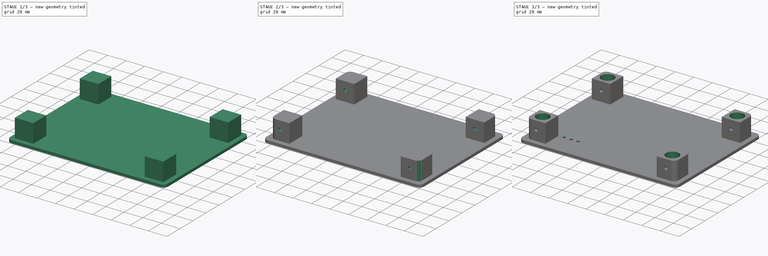
[diagram: build sequence overview — one tinted view per stage of 3, left to right]
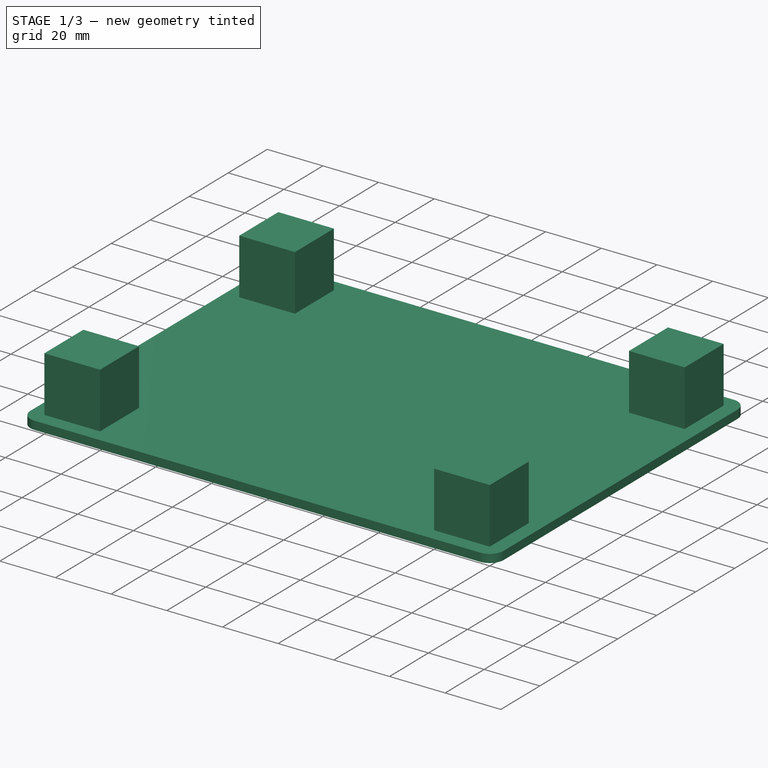
[diagram: stage 1 of 3 — iso view after this stage's code; geometry added in this stage tinted green]
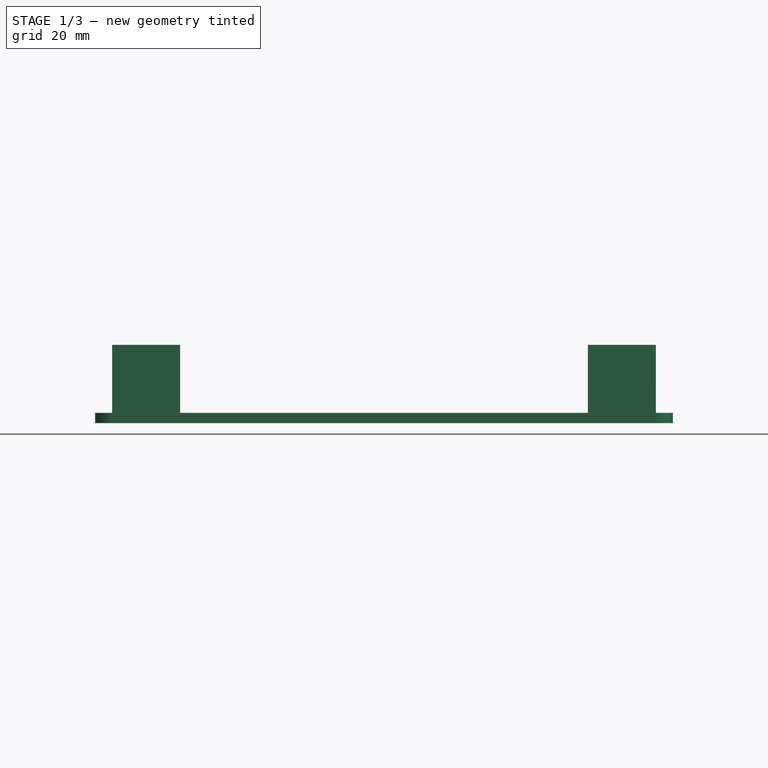
[diagram: stage 1 of 3 — front view after this stage's code; geometry added in this stage tinted green]
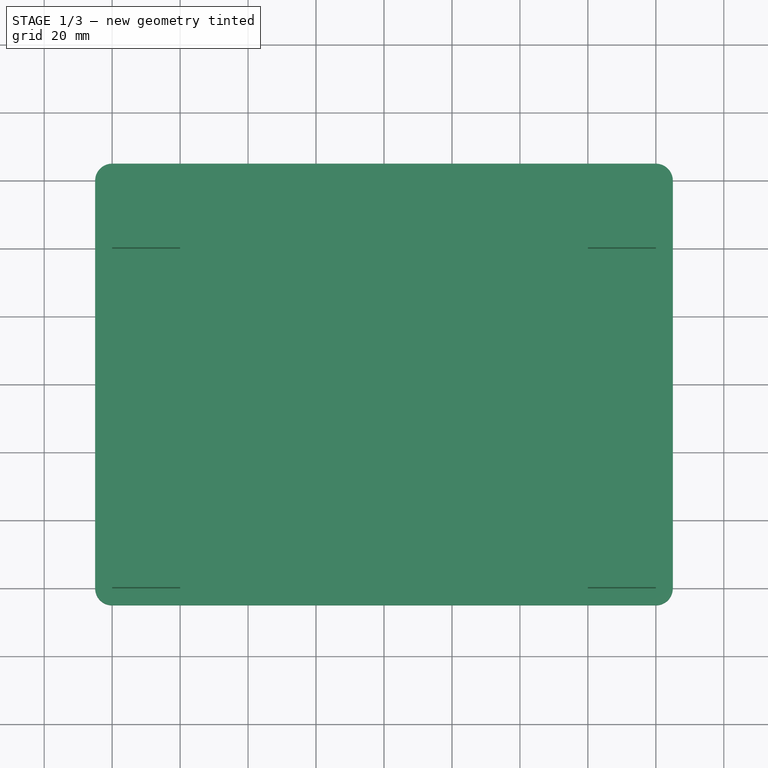
[diagram: stage 1 of 3 — top view after this stage's code; geometry added in this stage tinted green]
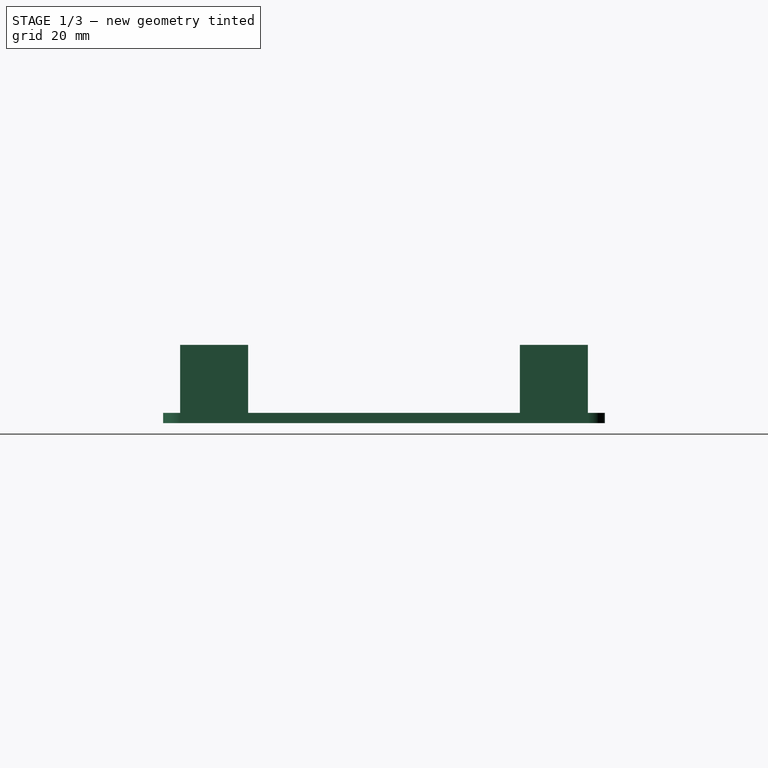
[diagram: stage 1 of 3 — right view after this stage's code; geometry added in this stage tinted green]
FCSTD DOCUMENT  (FreeCAD 0.16R5509 (Git))
Label: case_raspberryB_plate
License: All rights reserved
LicenseURL: http://en.wikipedia.org/wiki/All_rights_reserved
objects: Sketcher::SketchObject×7, PartDesign::Pocket×3, PartDesign::Pad×2, PartDesign::Fillet×1
note: 18 computed .brp shape members not serialized (recipe doc carries the construction recipe); baked Part::Feature solids carry a one-line shape summary decoded from their .brp

FEATURE [Sketcher::SketchObject] Sketch  label="SketchBoard"
  sketch-geometry (8):
    g0: LineSegment StartX=-80 StartY=65 StartZ=0 EndX=80 EndY=65 EndZ=0
    g1: LineSegment StartX=85 StartY=60 StartZ=0 EndX=85 EndY=-60 EndZ=0
    g2: LineSegment StartX=80 StartY=-65 StartZ=0 EndX=-80 EndY=-65 EndZ=0
    g3: LineSegment StartX=-85 StartY=-60 StartZ=0 EndX=-85 EndY=60 EndZ=0
    g4: ArcOfCircle CenterX=-80 CenterY=60 CenterZ=0 NormalX=0 NormalY=0 NormalZ=1 Radius=5 StartAngle=1.5708 EndAngle=3.14159
    g5: ArcOfCircle CenterX=80 CenterY=60 CenterZ=0 NormalX=0 NormalY=0 NormalZ=1 Radius=5 StartAngle=0 EndAngle=1.5708
    g6: ArcOfCircle CenterX=80 CenterY=-60 CenterZ=0 NormalX=0 NormalY=0 NormalZ=1 Radius=5 StartAngle=4.71239 EndAngle=6.28319
    g7: ArcOfCircle CenterX=-80 CenterY=-60 CenterZ=0 NormalX=0 NormalY=0 NormalZ=1 Radius=5 StartAngle=3.14159 EndAngle=4.71239
  constraints (18):
    c: Horizontal(g0)
    c: Horizontal(g2)
    c: Tangent(g3,g4) = 1.5708
    c: Tangent(g0,g4) = 1.5708
    c: Tangent(g0,g5) = 1.5708
    c: Tangent(g1,g5) = 1.5708
    c: Tangent(g1,g6) = 1.5708
    c: Tangent(g2,g6) = 1.5708
    c: Tangent(g3,g7) = 1.5708
    c: Tangent(g2,g7) = 1.5708
    c: Equal(g7,g4)
    c: Equal(g4,g5)
    c: Equal(g5,g6)
    c: Symmetric(g3,g1,g-2)
    c: Symmetric(g0,g2,g-1)
    c: DistanceX(g3,g1) = 170
    c: DistanceY(g0,g2) = -130
    c: Radius(g4) = 5
FEATURE [PartDesign::Pad] Pad  label="Board"
  Length = 3
  Length2 = 100
  Sketch = -> Sketch
  Type = 0
FEATURE [Sketcher::SketchObject] Sketch001  label="SketchPositions"
  ExternalGeometry = -> [Pad]
  Placement = pos=(0,0,3) rot=(0,0,1;0rad)
  Support = -> Pad [Face10]
  sketch-geometry (68):
    g0: LineSegment StartX=-76.7382 StartY=31.3423 StartZ=0 EndX=-38.7382 EndY=31.3423 EndZ=0
    g1: LineSegment StartX=-36.7382 StartY=29.3423 StartZ=0 EndX=-36.7382 EndY=-28.6577 EndZ=0
    g2: LineSegment StartX=-38.7382 StartY=-30.6577 StartZ=0 EndX=-76.7382 EndY=-30.6577 EndZ=0
    g3: LineSegment StartX=-78.7382 StartY=-28.6577 StartZ=0 EndX=-78.7382 EndY=29.3423 EndZ=0
    g4: ArcOfCircle CenterX=-76.7382 CenterY=29.3423 CenterZ=0 NormalX=0 NormalY=0 NormalZ=1 Radius=2 StartAngle=1.5708 EndAngle=3.14159
    g5: ArcOfCircle CenterX=-38.7382 CenterY=29.3423 CenterZ=0 NormalX=0 NormalY=0 NormalZ=1 Radius=2 StartAngle=0 EndAngle=1.5708
    g6: ArcOfCircle CenterX=-38.7382 CenterY=-28.6577 CenterZ=0 NormalX=0 NormalY=0 NormalZ=1 Radius=2 StartAngle=4.71239 EndAngle=6.28319
    g7: ArcOfCircle CenterX=-76.7382 CenterY=-28.6577 CenterZ=0 NormalX=0 NormalY=0 NormalZ=1 Radius=2 StartAngle=3.14159 EndAngle=4.71239
    g8: LineSegment StartX=-77.7382 StartY=32.3423 StartZ=0 EndX=-37.7382 EndY=32.3423 EndZ=0
    g9: LineSegment StartX=-35.7382 StartY=30.3423 StartZ=0 EndX=-35.7382 EndY=-29.6577 EndZ=0
    g10: LineSegment StartX=-37.7382 StartY=-31.6577 StartZ=0 EndX=-77.7382 EndY=-31.6577 EndZ=0
    g11: LineSegment StartX=-79.7382 StartY=-29.6577 StartZ=0 EndX=-79.7382 EndY=30.3423 EndZ=0
    g12: ArcOfCircle CenterX=-77.7382 CenterY=30.3423 CenterZ=0 NormalX=0 NormalY=0 NormalZ=1 Radius=2 StartAngle=1.5708 EndAngle=3.14159
    g13: ArcOfCircle CenterX=-37.7382 CenterY=30.3423 CenterZ=0 NormalX=0 NormalY=0 NormalZ=1 Radius=2 StartAngle=0 EndAngle=1.5708
    g14: ArcOfCircle CenterX=-37.7382 CenterY=-29.6577 CenterZ=0 NormalX=0 NormalY=0 NormalZ=1 Radius=2 StartAngle=4.71239 EndAngle=6.28319
    g15: ArcOfCircle CenterX=-77.7382 CenterY=-29.6577 CenterZ=0 NormalX=0 NormalY=0 NormalZ=1 Radius=2 StartAngle=3.14159 EndAngle=4.71239
    g16: LineSegment StartX=40.0389 StartY=19.1629 StartZ=0 EndX=76.0389 EndY=19.1629 EndZ=0
    g17: LineSegment StartX=78.0389 StartY=17.1629 StartZ=0 EndX=78.0389 EndY=-29.8371 EndZ=0
    g18: LineSegment StartX=76.0389 StartY=-31.8371 StartZ=0 EndX=40.0389 EndY=-31.8371 EndZ=0
    g19: LineSegment StartX=38.0389 StartY=-29.8371 StartZ=0 EndX=38.0389 EndY=17.1629 EndZ=0
    g20: ArcOfCircle CenterX=40.0389 CenterY=17.1629 CenterZ=0 NormalX=0 NormalY=0 NormalZ=1 Radius=2 StartAngle=1.5708 EndAngle=3.14159
    g21: ArcOfCircle CenterX=76.0389 CenterY=17.1629 CenterZ=0 NormalX=0 NormalY=0 NormalZ=1 Radius=2 StartAngle=0 EndAngle=1.5708
    g22: ArcOfCircle CenterX=76.0389 CenterY=-29.8371 CenterZ=0 NormalX=0 NormalY=0 NormalZ=1 Radius=2 StartAngle=4.71239 EndAngle=6.28319
    g23: ArcOfCircle CenterX=40.0389 CenterY=-29.8371 CenterZ=0 NormalX=0 NormalY=0 NormalZ=1 Radius=2 StartAngle=3.14159 EndAngle=4.71239
    g24: LineSegment StartX=39.0389 StartY=20.1629 StartZ=0 EndX=77.0389 EndY=20.1629 EndZ=0
    g25: LineSegment StartX=79.0389 StartY=18.1629 StartZ=0 EndX=79.0389 EndY=-30.8371 EndZ=0
    g26: LineSegment StartX=77.0389 StartY=-32.8371 StartZ=0 EndX=39.0389 EndY=-32.8371 EndZ=0
    g27: LineSegment StartX=37.0389 StartY=-30.8371 StartZ=0 EndX=37.0389 EndY=18.1629 EndZ=0
    g28: ArcOfCircle CenterX=39.0389 CenterY=18.1629 CenterZ=0 NormalX=0 NormalY=0 NormalZ=1 Radius=2 StartAngle=1.5708 EndAngle=3.14159
    g29: ArcOfCircle CenterX=77.0389 CenterY=18.1629 CenterZ=0 NormalX=0 NormalY=0 NormalZ=1 Radius=2 StartAngle=0 EndAngle=1.5708
    g30: ArcOfCircle CenterX=77.0389 CenterY=-30.8371 CenterZ=0 NormalX=0 NormalY=0 NormalZ=1 Radius=2 StartAngle=4.71239 EndAngle=6.28319
    g31: ArcOfCircle CenterX=39.0389 CenterY=-30.8371 CenterZ=0 NormalX=0 NormalY=0 NormalZ=1 Radius=2 StartAngle=3.14159 EndAngle=4.71239
    g32: LineSegment StartX=-30.4598 StartY=27.7306 StartZ=0 EndX=22.5402 EndY=27.7306 EndZ=0
    g33: LineSegment StartX=24.5402 StartY=25.7306 StartZ=0 EndX=24.5402 EndY=-57.2694 EndZ=0
    g34: LineSegment StartX=22.5402 StartY=-59.2694 StartZ=0 EndX=-30.4598 EndY=-59.2694 EndZ=0
    g35: LineSegment StartX=-32.4598 StartY=-57.2694 StartZ=0 EndX=-32.4598 EndY=25.7306 EndZ=0
    g36: ArcOfCircle CenterX=-30.4598 CenterY=25.7306 CenterZ=0 NormalX=0 NormalY=0 NormalZ=1 Radius=2 StartAngle=1.5708 EndAngle=3.14159
    g37: ArcOfCircle CenterX=22.5402 CenterY=25.7306 CenterZ=0 NormalX=0 NormalY=0 NormalZ=1 Radius=2 StartAngle=0 EndAngle=1.5708
    g38: ArcOfCircle CenterX=22.5402 CenterY=-57.2694 CenterZ=0 NormalX=0 NormalY=0 NormalZ=1 Radius=2 StartAngle=4.71239 EndAngle=6.28319
    g39: ArcOfCircle CenterX=-30.4598 CenterY=-57.2694 CenterZ=0 NormalX=0 NormalY=0 NormalZ=1 Radius=2 StartAngle=3.14159 EndAngle=4.71239
    g40: LineSegment StartX=-31.4598 StartY=28.7306 StartZ=0 EndX=24.3138 EndY=28.7306 EndZ=0
    g41: LineSegment StartX=23.5402 StartY=-60.2694 StartZ=0 EndX=-31.4598 EndY=-60.2694 EndZ=0
    g42: LineSegment StartX=-33.4598 StartY=-58.2694 StartZ=0 EndX=-33.4598 EndY=26.7306 EndZ=0
    g43: ArcOfCircle CenterX=-31.4598 CenterY=26.7306 CenterZ=0 NormalX=0 NormalY=0 NormalZ=1 Radius=2 StartAngle=1.5708 EndAngle=3.14159
    g44: ArcOfCircle CenterX=24.3138 CenterY=26.7306 CenterZ=0 NormalX=0 NormalY=0 NormalZ=1 Radius=2 StartAngle=0.910664 EndAngle=1.5708
    g45: ArcOfCircle CenterX=23.5402 CenterY=-58.2694 CenterZ=0 NormalX=0 NormalY=0 NormalZ=1 Radius=2 StartAngle=4.71239 EndAngle=6.28319
    g46: ArcOfCircle CenterX=-31.4598 CenterY=-58.2694 CenterZ=0 NormalX=0 NormalY=0 NormalZ=1 Radius=2 StartAngle=3.14159 EndAngle=4.71239
    g47: LineSegment StartX=25.5402 StartY=-58.2694 StartZ=0 EndX=25.5402 EndY=-19.2694 EndZ=0
    g48: LineSegment StartX=25.5402 StartY=-19.2694 StartZ=0 EndX=31.5402 EndY=-19.2694 EndZ=0
    g49: LineSegment StartX=31.5402 StartY=-19.2694 StartZ=0 EndX=31.5402 EndY=-12.2694 EndZ=0
    g50: LineSegment StartX=31.5402 StartY=-12.2694 StartZ=0 EndX=25.5402 EndY=-12.2694 EndZ=0
    g51: LineSegment StartX=25.5402 StartY=-12.2694 StartZ=0 EndX=25.5402 EndY=28.3104 EndZ=0
    g52: LineSegment StartX=-7.3398 StartY=57.1476 StartZ=0 EndX=50.6602 EndY=57.1476 EndZ=0
    g53: LineSegment StartX=52.6602 StartY=55.1476 StartZ=0 EndX=52.6602 EndY=36.1476 EndZ=0
    g54: LineSegment StartX=50.6602 StartY=34.1476 StartZ=0 EndX=-7.3398 EndY=34.1476 EndZ=0
    g55: LineSegment StartX=-9.3398 StartY=36.1476 StartZ=0 EndX=-9.3398 EndY=55.1476 EndZ=0
    g56: ArcOfCircle CenterX=-7.3398 CenterY=55.1476 CenterZ=0 NormalX=0 NormalY=0 NormalZ=1 Radius=2 StartAngle=1.5708 EndAngle=3.14159
    g57: ArcOfCircle CenterX=50.6602 CenterY=55.1476 CenterZ=0 NormalX=0 NormalY=0 NormalZ=1 Radius=2 StartAngle=0 EndAngle=1.5708
    g58: ArcOfCircle CenterX=50.6602 CenterY=36.1476 CenterZ=0 NormalX=0 NormalY=0 NormalZ=1 Radius=2 StartAngle=4.71239 EndAngle=6.28319
    g59: ArcOfCircle CenterX=-7.3398 CenterY=36.1476 CenterZ=0 NormalX=0 NormalY=0 NormalZ=1 Radius=2 StartAngle=3.14159 EndAngle=4.71239
    g60: LineSegment StartX=-8.3398 StartY=58.1476 StartZ=0 EndX=51.6602 EndY=58.1476 EndZ=0
    g61: LineSegment StartX=53.6602 StartY=56.1476 StartZ=0 EndX=53.6602 EndY=35.1476 EndZ=0
    g62: LineSegment StartX=51.6602 StartY=33.1476 StartZ=0 EndX=-8.3398 EndY=33.1476 EndZ=0
    g63: LineSegment StartX=-10.3398 StartY=35.1476 StartZ=0 EndX=-10.3398 EndY=56.1476 EndZ=0
    g64: ArcOfCircle CenterX=-8.3398 CenterY=56.1476 CenterZ=0 NormalX=0 NormalY=0 NormalZ=1 Radius=2 StartAngle=1.5708 EndAngle=3.14159
    g65: ArcOfCircle CenterX=51.6602 CenterY=56.1476 CenterZ=0 NormalX=0 NormalY=0 NormalZ=1 Radius=2 StartAngle=0 EndAngle=1.5708
    g66: ArcOfCircle CenterX=51.6602 CenterY=35.1476 CenterZ=0 NormalX=0 NormalY=0 NormalZ=1 Radius=2 StartAngle=4.71239 EndAngle=6.28319
    g67: ArcOfCircle CenterX=-8.3398 CenterY=35.1476 CenterZ=0 NormalX=0 NormalY=0 NormalZ=1 Radius=2 StartAngle=3.14159 EndAngle=4.71239
  constraints (164):
    c: Tangent(g0,g4) = 1.5708
    c: Tangent(g3,g4) = 1.5708
    c: Tangent(g0,g5) = 1.5708
    c: Tangent(g1,g5) = 1.5708
    c: Tangent(g2,g6) = 1.5708
    c: Tangent(g1,g6) = 1.5708
    c: Tangent(g2,g7) = 1.5708
    c: Tangent(g3,g7) = 1.5708
    c: Horizontal(g0)
    c: Vertical(g1)
    c: Vertical(g3)
    c: Horizontal(g2)
    c: DistanceY(g2,g0) = 62
    c: Equal(g4,g7)
    c: Equal(g7,g6)
    c: Equal(g6,g5)
    c: Radius(g5) = 2
    c: Tangent(g8,g12) = 1.5708
    c: Tangent(g11,g12) = 1.5708
    c: Tangent(g8,g13) = 1.5708
    c: Tangent(g9,g13) = 1.5708
    c: Tangent(g10,g14) = 1.5708
    c: Tangent(g9,g14) = 1.5708
    c: Tangent(g10,g15) = 1.5708
    c: Tangent(g11,g15) = 1.5708
    c: Horizontal(g8)
    c: Vertical(g9)
    c: Vertical(g11)
    c: Horizontal(g10)
    c: DistanceY(g10,g8) = 64
    c: Equal(g12,g15)
    c: Equal(g15,g14)
    c: Equal(g14,g13)
    c: Equal(g5,g13) = 2
    c: DistanceX(g11,g9) = 44
    c: DistanceX(g3,g1) = 42
    c: DistanceY(g8,g0) = -1
    c: DistanceX(g11,g3) = 1
    c: Tangent(g16,g20) = 1.5708
    c: Tangent(g19,g20) = 1.5708
    c: Tangent(g16,g21) = 1.5708
    c: Tangent(g17,g21) = 1.5708
    c: Tangent(g18,g22) = 1.5708
    c: Tangent(g17,g22) = 1.5708
    c: Tangent(g18,g23) = 1.5708
    c: Tangent(g19,g23) = 1.5708
    c: Horizontal(g16)
    c: Vertical(g17)
    c: Vertical(g19)
    c: Horizontal(g18)
    c: DistanceY(g18,g16) = 51
    c: Equal(g20,g23)
    c: Equal(g23,g22)
    c: Equal(g22,g21)
    c: Equal(g5,g21) = 2
    c: Tangent(g24,g28) = 1.5708
    c: Tangent(g27,g28) = 1.5708
    c: Tangent(g24,g29) = 1.5708
    c: Tangent(g25,g29) = 1.5708
    c: Tangent(g26,g30) = 1.5708
    c: Tangent(g25,g30) = 1.5708
    c: Tangent(g26,g31) = 1.5708
    c: Tangent(g27,g31) = 1.5708
    c: Horizontal(g24)
    c: Vertical(g25)
    c: Vertical(g27)
    c: Horizontal(g26)
    c: DistanceY(g26,g24) = 53
    c: Equal(g28,g31)
    c: Equal(g31,g30)
    c: Equal(g30,g29)
    c: Equal(g21,g29) = 2
    c: DistanceX(g27,g25) = 42
    c: DistanceX(g19,g17) = 40
    c: DistanceY(g24,g16) = -1
    c: DistanceX(g27,g19) = 1
    c: Tangent(g32,g36) = 1.5708
    c: Tangent(g35,g36) = 1.5708
    c: Tangent(g32,g37) = 1.5708
    c: Tangent(g33,g37) = 1.5708
    c: Tangent(g34,g38) = 1.5708
    c: Tangent(g33,g38) = 1.5708
    c: Tangent(g34,g39) = 1.5708
    c: Tangent(g35,g39) = 1.5708
    c: Horizontal(g32)
    c: Vertical(g33)
    c: Vertical(g35)
    c: Horizontal(g34)
    c: DistanceY(g34,g32) = 87
    c: Equal(g36,g39)
    c: Equal(g39,g38)
    c: Equal(g38,g37)
    c: Tangent(g40,g43) = 1.5708
    c: Tangent(g42,g43) = 1.5708
    c: Tangent(g40,g44) = 1.5708
    c: Tangent(g41,g45) = 1.5708
    c: Tangent(g41,g46) = 1.5708
    c: Tangent(g42,g46) = 1.5708
    c: Horizontal(g40)
    c: Vertical(g42)
    c: Horizontal(g41)
    c: DistanceY(g41,g40) = 89
    c: Equal(g43,g46)
    c: Equal(g46,g45)
    c: Equal(g45,g44)
    c: Equal(g37,g44) = 2
    c: DistanceX(g35,g33) = 57
    c: DistanceY(g40,g32) = -1
    c: DistanceX(g42,g35) = 1
    c: Radius(g43) = 2
    c: Tangent(g45,g47) = -1.5708
    c: Coincident(g47,g48)
    c: Horizontal(g48)
    c: Coincident(g48,g49)
    c: Vertical(g49)
    c: Coincident(g49,g50)
    c: Horizontal(g50)
    c: Coincident(g50,g51)
    c: Coincident(g51,g44)
    c: Vertical(g51)
    c: Distance(g50) = 6
    c: Equal(g50,g48)
    c: DistanceX(g33,g44) = 1
    c: Distance(g49) = 7
    c: Vertical(g47)
    c: DistanceY(g32,g50) = -40
    c: Tangent(g52,g56) = 1.5708
    c: Tangent(g55,g56) = 1.5708
    c: Tangent(g52,g57) = 1.5708
    c: Tangent(g53,g57) = 1.5708
    c: Tangent(g54,g58) = 1.5708
    c: Tangent(g53,g58) = 1.5708
    c: Tangent(g54,g59) = 1.5708
    c: Tangent(g55,g59) = 1.5708
    c: Horizontal(g52)
    c: Vertical(g53)
    c: Vertical(g55)
    c: Horizontal(g54)
    c: DistanceY(g54,g52) = 23
    c: Equal(g56,g59)
    c: Equal(g59,g58)
    c: Equal(g58,g57)
    c: Tangent(g60,g64) = 1.5708
    c: Tangent(g63,g64) = 1.5708
    c: Tangent(g60,g65) = 1.5708
    c: Tangent(g61,g65) = 1.5708
    c: Tangent(g62,g66) = 1.5708
    c: Tangent(g61,g66) = 1.5708
    c: Tangent(g62,g67) = 1.5708
    c: Tangent(g63,g67) = 1.5708
    c: Horizontal(g60)
    c: Vertical(g61)
    c: Vertical(g63)
    c: Horizontal(g62)
    c: DistanceY(g62,g60) = 25
    c: Equal(g64,g67)
    c: Equal(g67,g66)
    c: Equal(g66,g65)
    c: Equal(g57,g65) = 2
    c: DistanceX(g63,g61) = 64
    c: DistanceX(g55,g53) = 62
    c: DistanceY(g60,g52) = -1
    c: DistanceX(g63,g55) = 1
    c: Radius(g65) = 2
FEATURE [Sketcher::SketchObject] Sketch002  label="SketchMountingBolts"
  Placement = pos=(0,0,3) rot=(0,0,1;0rad)
  Support = -> Pad [Face10]
  sketch-geometry (20):
    g0: LineSegment [constr] StartX=-80 StartY=60 StartZ=0 EndX=80 EndY=60 EndZ=0
    g1: LineSegment [constr] StartX=80 StartY=60 StartZ=0 EndX=80 EndY=-60 EndZ=0
    g2: LineSegment [constr] StartX=80 StartY=-60 StartZ=0 EndX=-80 EndY=-60 EndZ=0
    g3: LineSegment [constr] StartX=-80 StartY=-60 StartZ=0 EndX=-80 EndY=60 EndZ=0
    g4: LineSegment StartX=-80 StartY=60 StartZ=0 EndX=-60 EndY=60 EndZ=0
    g5: LineSegment StartX=-60 StartY=60 StartZ=0 EndX=-60 EndY=40 EndZ=0
    g6: LineSegment StartX=-60 StartY=40 StartZ=0 EndX=-80 EndY=40 EndZ=0
    g7: LineSegment StartX=-80 StartY=40 StartZ=0 EndX=-80 EndY=60 EndZ=0
    g8: LineSegment StartX=80 StartY=60 StartZ=0 EndX=60 EndY=60 EndZ=0
    g9: LineSegment StartX=60 StartY=60 StartZ=0 EndX=60 EndY=40 EndZ=0
    g10: LineSegment StartX=60 StartY=40 StartZ=0 EndX=80 EndY=40 EndZ=0
    g11: LineSegment StartX=80 StartY=40 StartZ=0 EndX=80 EndY=60 EndZ=0
    g12: LineSegment StartX=80 StartY=-60 StartZ=0 EndX=60 EndY=-60 EndZ=0
    g13: LineSegment StartX=60 StartY=-60 StartZ=0 EndX=60 EndY=-40 EndZ=0
    g14: LineSegment StartX=60 StartY=-40 StartZ=0 EndX=80 EndY=-40 EndZ=0
    g15: LineSegment StartX=80 StartY=-40 StartZ=0 EndX=80 EndY=-60 EndZ=0
    g16: LineSegment StartX=-80 StartY=-60 StartZ=0 EndX=-60 EndY=-60 EndZ=0
    g17: LineSegment StartX=-60 StartY=-60 StartZ=0 EndX=-60 EndY=-40 EndZ=0
    g18: LineSegment StartX=-60 StartY=-40 StartZ=0 EndX=-80 EndY=-40 EndZ=0
    g19: LineSegment StartX=-80 StartY=-40 StartZ=0 EndX=-80 EndY=-60 EndZ=0
  constraints (56):
    c: Coincident(g0,g1)
    c: Coincident(g1,g2)
    c: Coincident(g2,g3)
    c: Coincident(g3,g0)
    c: Horizontal(g0)
    c: Horizontal(g2)
    c: Vertical(g1)
    c: Vertical(g3)
    c: Symmetric(g1,g0,g-1)
    c: Symmetric(g0,g0,g-2)
    c: DistanceX(g0,g0) = -160
    c: DistanceY(g1,g0) = 120
    c: Coincident(g4,g5)
    c: Coincident(g5,g6)
    c: Coincident(g6,g7)
    c: Coincident(g7,g4)
    c: Horizontal(g4)
    c: Horizontal(g6)
    c: Vertical(g5)
    c: Vertical(g7)
    c: Coincident(g4,g0)
    c: Coincident(g8,g9)
    c: Coincident(g9,g10)
    c: Coincident(g10,g11)
    c: Coincident(g11,g8)
    c: Horizontal(g8)
    c: Horizontal(g10)
    c: Vertical(g9)
    c: Vertical(g11)
    c: Coincident(g8,g0)
    c: Coincident(g12,g13)
    c: Coincident(g13,g14)
    c: Coincident(g14,g15)
    c: Coincident(g15,g12)
    c: Horizontal(g12)
    c: Horizontal(g14)
    c: Vertical(g13)
    c: Vertical(g15)
    c: Coincident(g12,g1)
    c: Coincident(g16,g17)
    c: Coincident(g17,g18)
    c: Coincident(g18,g19)
    c: Coincident(g19,g16)
    c: Horizontal(g16)
    c: Horizontal(g18)
    c: Vertical(g17)
    c: Vertical(g19)
    c: Coincident(g16,g2)
    c: Equal(g18,g17)
    c: Equal(g14,g13)
    c: Equal(g10,g9)
    c: Equal(g5,g6)
    c: Equal(g5,g9)
    c: Equal(g9,g13)
    c: Equal(g13,g17)
    c: Distance(g5) = 20
FEATURE [PartDesign::Pad] Pad001  label="MountingBolts"
  Length = 20
  Length2 = 100
  Sketch = -> Sketch002
  Type = 0
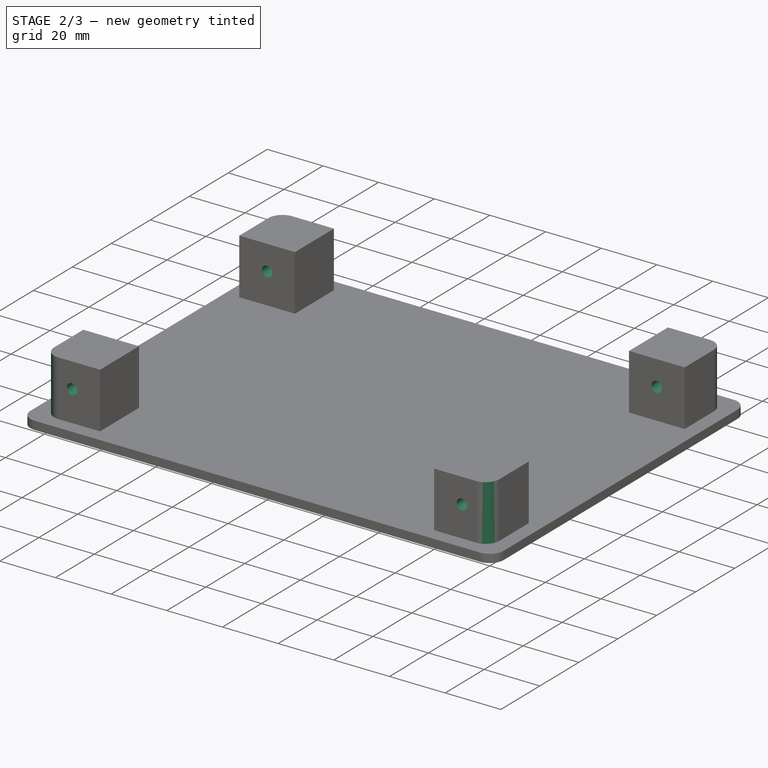
[diagram: stage 2 of 3 — iso view after this stage's code; geometry added in this stage tinted green]
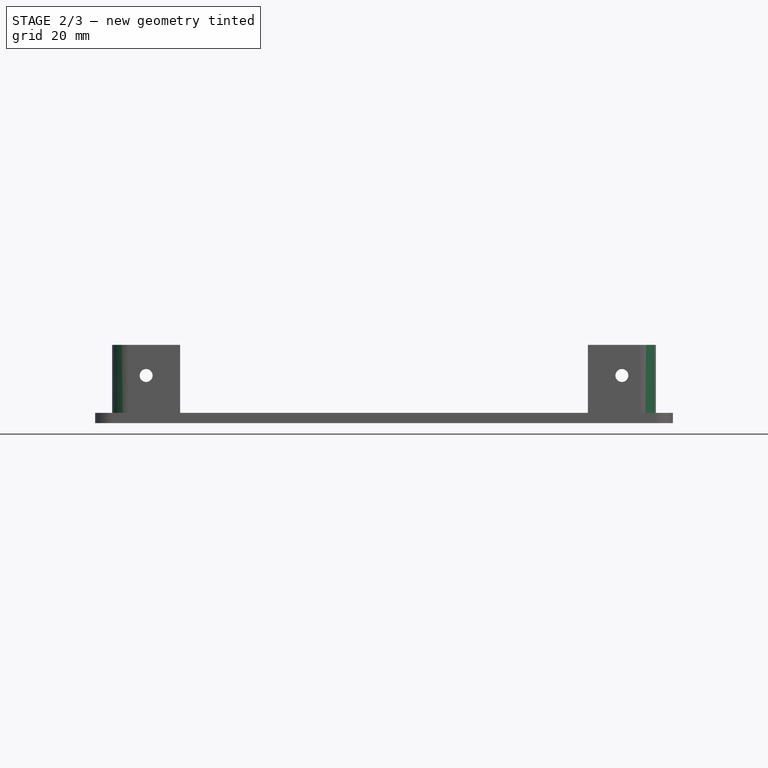
[diagram: stage 2 of 3 — front view after this stage's code; geometry added in this stage tinted green]
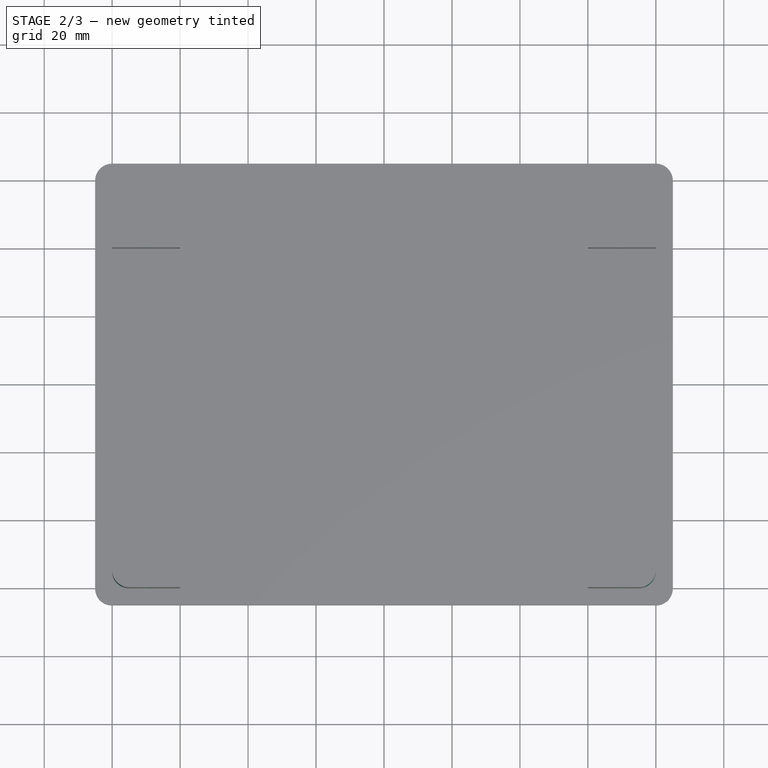
[diagram: stage 2 of 3 — top view after this stage's code; geometry added in this stage tinted green]
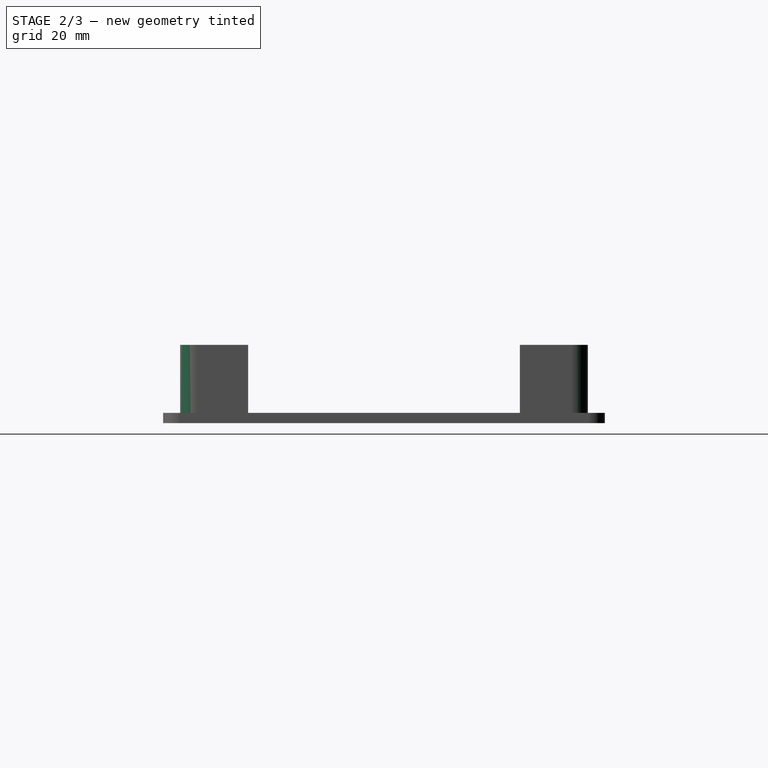
[diagram: stage 2 of 3 — right view after this stage's code; geometry added in this stage tinted green]
FEATURE [PartDesign::Fillet] Fillet  label="MountingBoltsFaces"
  Base = -> Pad001 [Edge52,Edge43,Edge65,Edge57]
  Radius = 5
FEATURE [Sketcher::SketchObject] Sketch003
  Placement = pos=(0,-60,0) rot=(1,0,0;1.5708rad)
  Support = -> Fillet [Face25]
  sketch-geometry (2):
    g0: Circle CenterX=-70 CenterY=14 CenterZ=0 NormalX=0 NormalY=0 NormalZ=1 Radius=1.9
    g1: Circle CenterX=70 CenterY=14 CenterZ=0 NormalX=0 NormalY=0 NormalZ=1 Radius=1.9
  constraints (5):
    c: Equal(g1,g0)
    c: Radius(g1) = 1.9
    c: Symmetric(g0,g1,g-2)
    c: DistanceX(g1,g0) = -140
    c: DistanceY(g-1,g0) = 14
FEATURE [PartDesign::Pocket] Pocket  label="CoverMountingHoles"
  Length = 5
  Sketch = -> Sketch003
  Type = 1
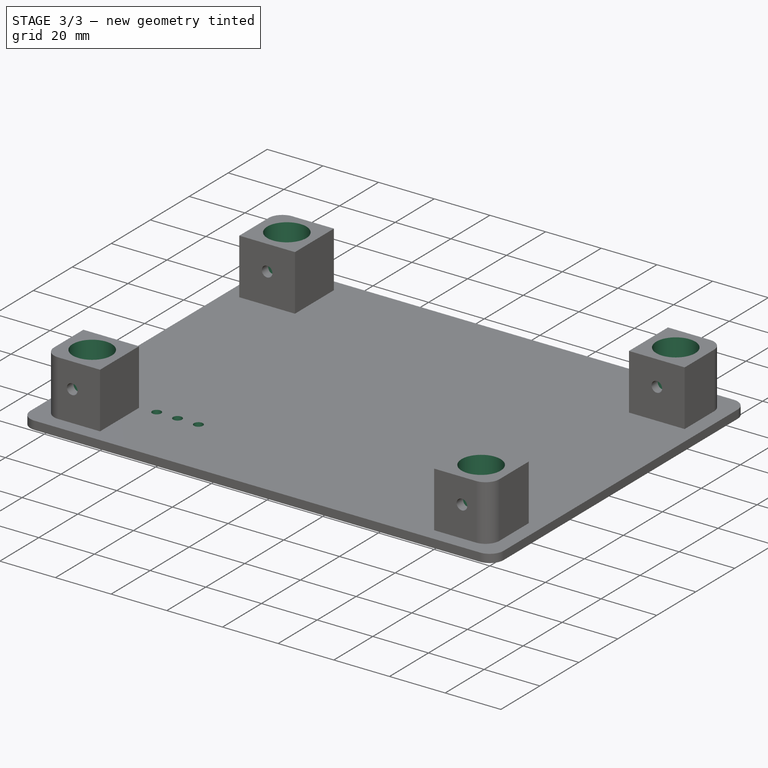
[diagram: stage 3 of 3 — iso view after this stage's code; geometry added in this stage tinted green]
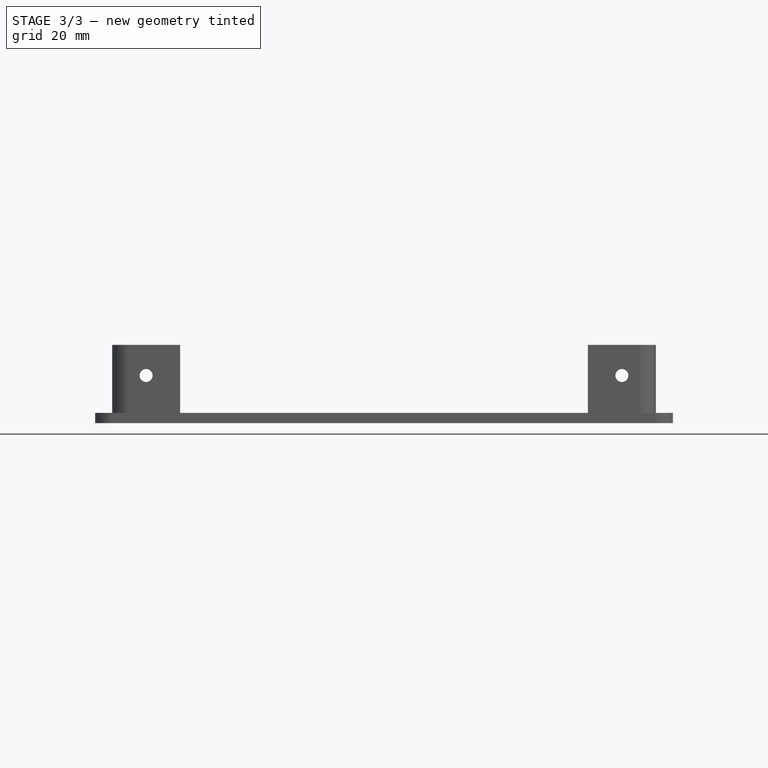
[diagram: stage 3 of 3 — front view after this stage's code; geometry added in this stage tinted green]
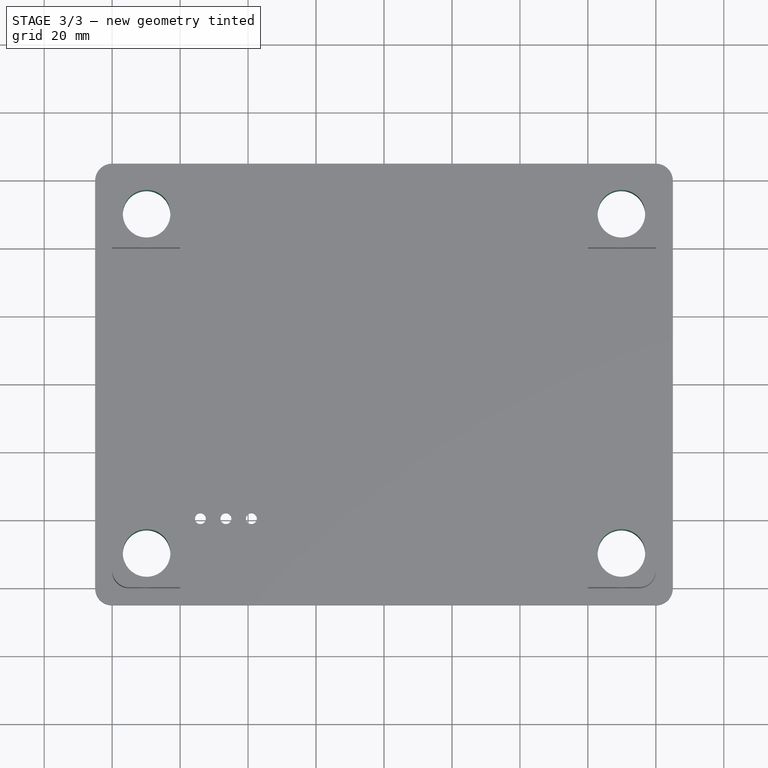
[diagram: stage 3 of 3 — top view after this stage's code; geometry added in this stage tinted green]
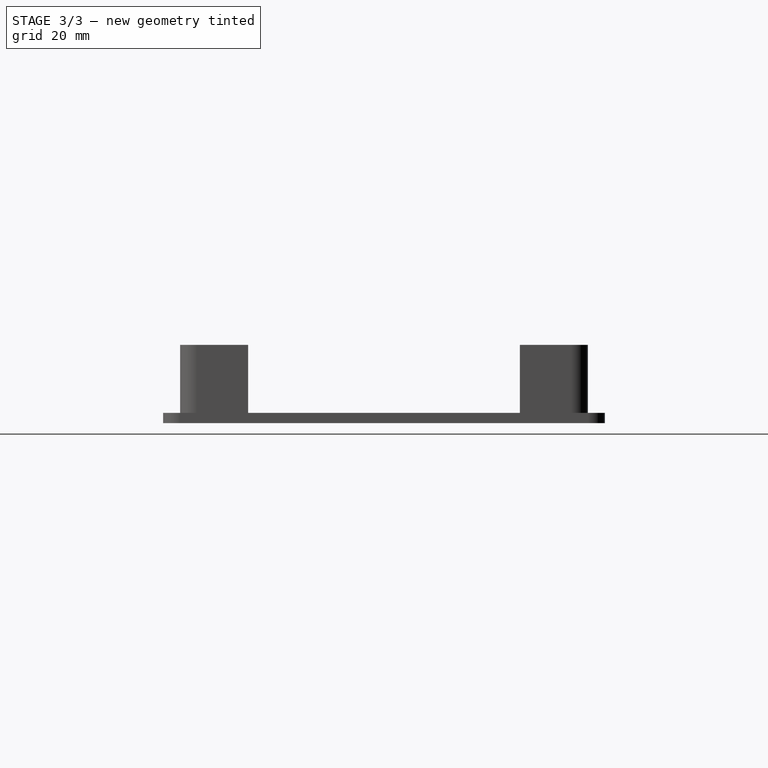
[diagram: stage 3 of 3 — right view after this stage's code; geometry added in this stage tinted green]
FEATURE [Sketcher::SketchObject] Sketch004  label="SketchSuckerMounting"
  Placement = pos=(0,0,23) rot=(0,0,1;0rad)
  Support = -> Pocket [Face33]
  sketch-geometry (4):
    g0: Circle CenterX=-69.8597 CenterY=49.9275 CenterZ=0 NormalX=0 NormalY=0 NormalZ=1 Radius=7
    g1: Circle CenterX=69.8597 CenterY=49.9275 CenterZ=0 NormalX=0 NormalY=0 NormalZ=1 Radius=7
    g2: Circle CenterX=69.8597 CenterY=-49.9275 CenterZ=0 NormalX=0 NormalY=0 NormalZ=1 Radius=7
    g3: Circle CenterX=-69.8597 CenterY=-49.9275 CenterZ=0 NormalX=0 NormalY=0 NormalZ=1 Radius=7
  constraints (7):
    c: Symmetric(g0,g1,g-2)
    c: Symmetric(g3,g2,g-2)
    c: Symmetric(g1,g2,g-1)
    c: Radius(g1) = 7
    c: Equal(g0,g3)
    c: Equal(g3,g2)
    c: Equal(g2,g1)
FEATURE [PartDesign::Pocket] Pocket001  label="SuckerMountingHoles"
  Length = 5
  Sketch = -> Sketch004
  Type = 1
FEATURE [Sketcher::SketchObject] Sketch005  label="SketchStatusLEDs"
  Placement = pos=(0,0,3) rot=(0,0,1;0rad)
  Support = -> Pocket001 [Face1]
  sketch-geometry (5):
    g0: Circle CenterX=-54.0259 CenterY=-39.4729 CenterZ=0 NormalX=0 NormalY=0 NormalZ=1 Radius=1.6
    g1: Circle CenterX=-46.5259 CenterY=-39.4729 CenterZ=0 NormalX=0 NormalY=0 NormalZ=1 Radius=1.6
    g2: Circle CenterX=-39.0259 CenterY=-39.4729 CenterZ=0 NormalX=0 NormalY=0 NormalZ=1 Radius=1.6
    g3: LineSegment [constr] StartX=-54.0259 StartY=-39.4729 StartZ=0 EndX=-46.5259 EndY=-39.4729 EndZ=0
    g4: LineSegment [constr] StartX=-46.5259 StartY=-39.4729 StartZ=0 EndX=-39.0259 EndY=-39.4729 EndZ=0
  constraints (11):
    c: Equal(g0,g1)
    c: Equal(g1,g2)
    c: Coincident(g3,g0)
    c: Coincident(g3,g1)
    c: Horizontal(g3)
    c: Coincident(g3,g4)
    c: Coincident(g4,g2)
    c: Horizontal(g4)
    c: Equal(g3,g4)
    c: Radius(g2) = 1.6
    c: DistanceX(g2,g0) = -15
FEATURE [PartDesign::Pocket] Pocket002  label="StatusLEDHoles"
  Length = 5
  Sketch = -> Sketch005
  Type = 1
FEATURE [Sketcher::SketchObject] Sketch006
  Placement = pos=(0,0,0) rot=(1,0,0;3.14159rad)
  Support = -> Pocket002 [Face33]
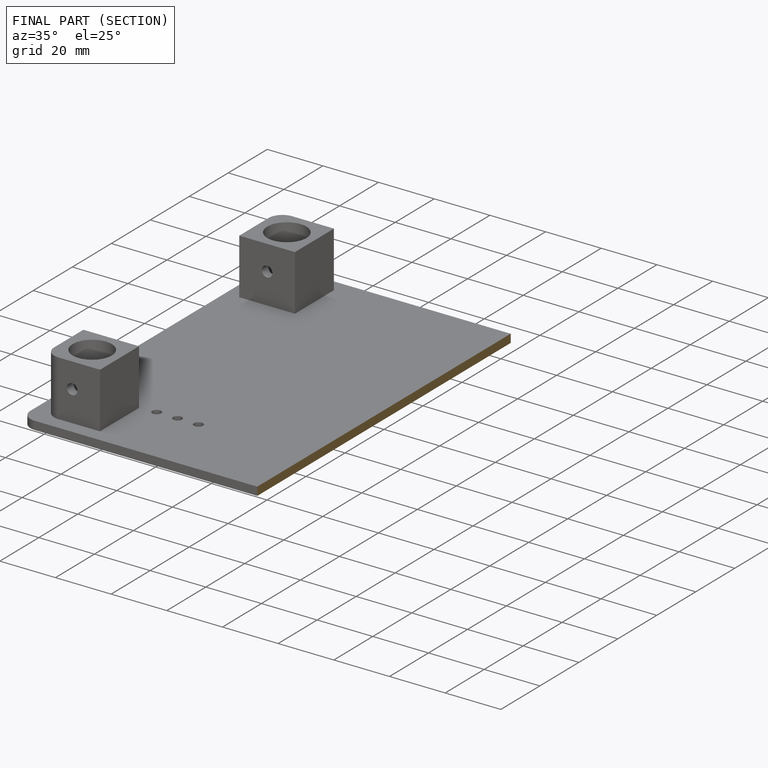
[diagram: finished part — half-section view (interior)]
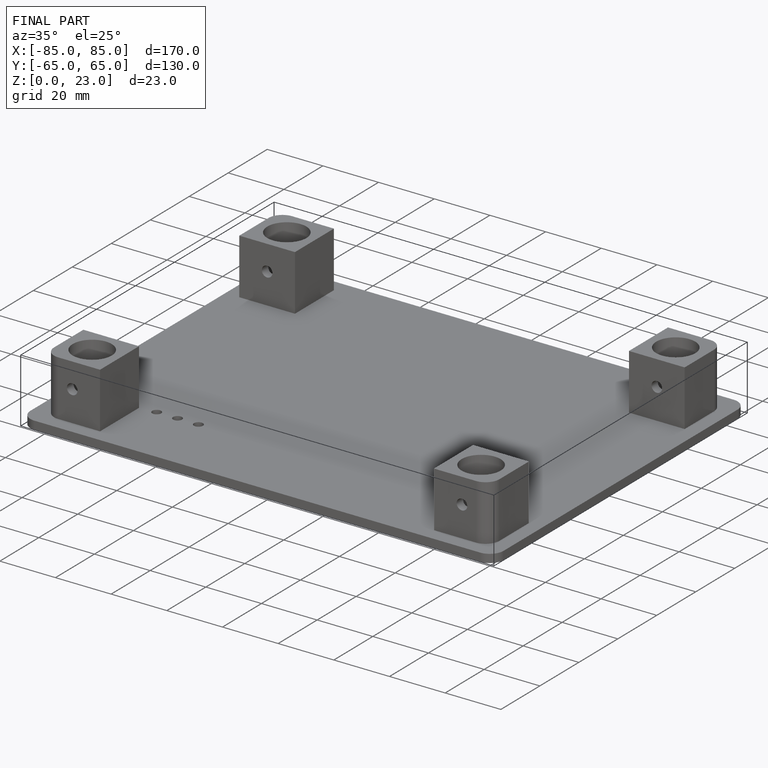
[diagram: finished part — iso view with bounding-box wireframe]
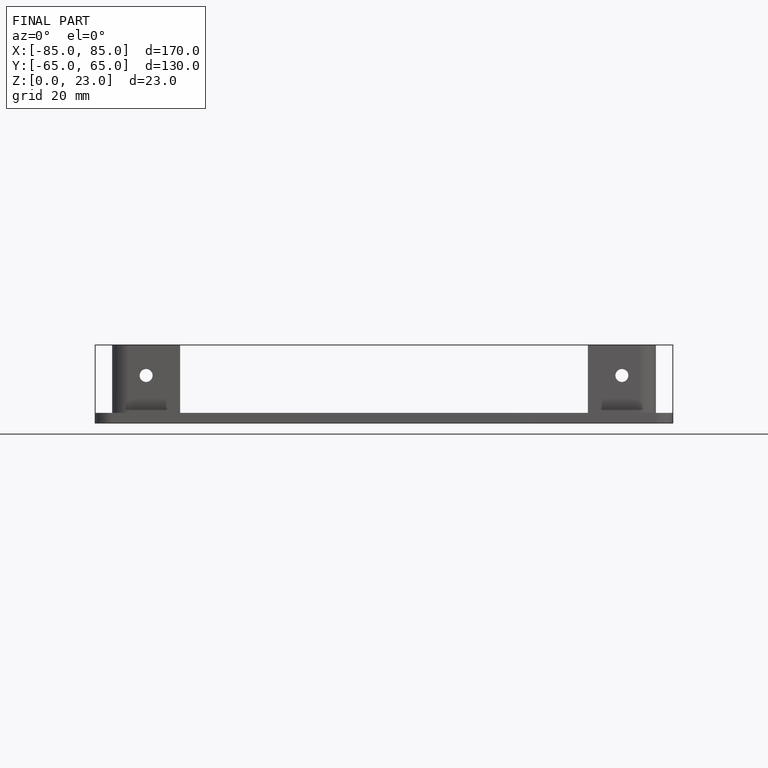
[diagram: finished part — front view with bounding-box wireframe]
